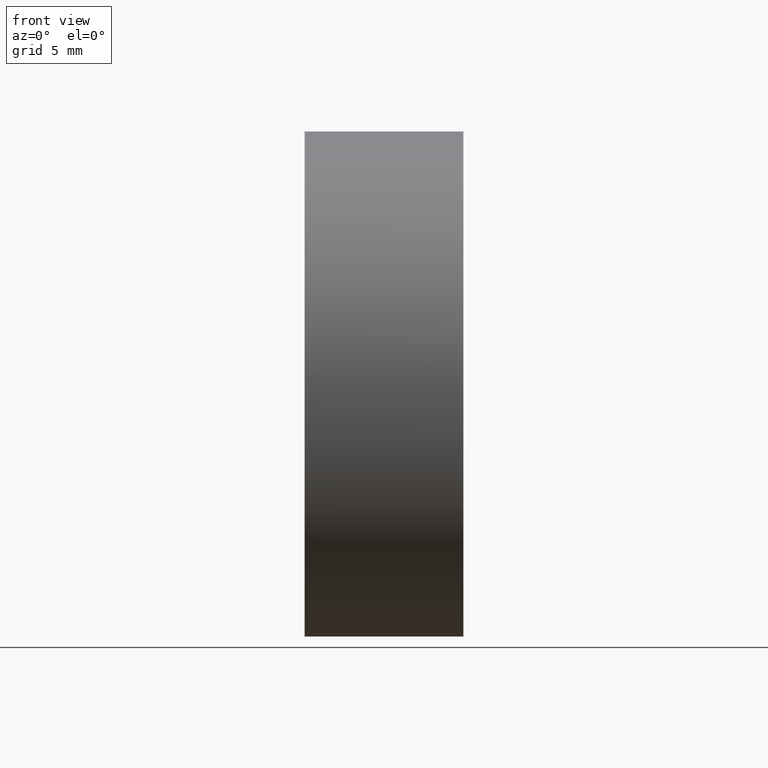
[diagram: clean part render]
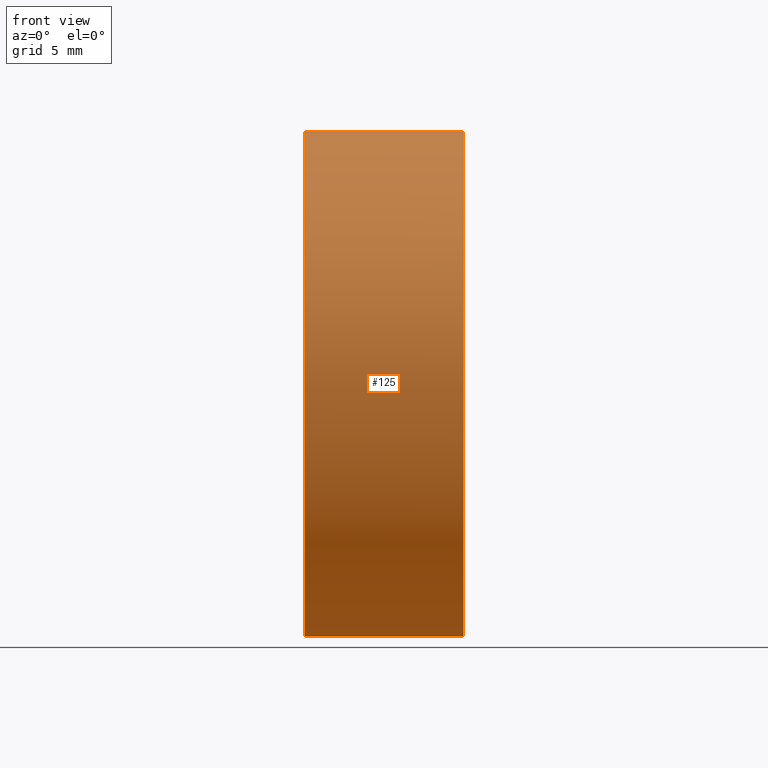
[diagram: same view with one face highlighted and labeled with its STEP entity id]
A machine part, front view. The second image highlights one B-rep face of the part: STEP entity #125.
In plain terms, the highlighted cylindrical surface (partial cylindrical patch) has radius 12.5 mm, axis along (-1, -0, -0).
Its self-contained STEP definition (entity closure, byte-faithful):
#1 = CARTESIAN_POINT ( 'NONE',  ( 57.53233705252611700, 32.61076812922678400, -12.49999999999999600 ) ) ;
#5 = CIRCLE ( 'NONE', #91, 12.49999999999999600 ) ;
#8 = AXIS2_PLACEMENT_3D ( 'NONE', #164, #10, #47 ) ;
#10 = DIRECTION ( 'NONE',  ( -1.000000000000000000, -0.0000000000000000000, -0.0000000000000000000 ) ) ;
#14 = VECTOR ( 'NONE', #140, 1000.000000000000000 ) ;
#19 = VERTEX_POINT ( 'NONE', #1 ) ;
#25 = CARTESIAN_POINT ( 'NONE',  ( 56.10091507999716500, 32.61076812922678400, 12.49999999999999600 ) ) ;
#31 = DIRECTION ( 'NONE',  ( -1.000000000000000000, -0.0000000000000000000, -0.0000000000000000000 ) ) ;
#34 = LINE ( 'NONE', #25, #14 ) ;
#38 = DIRECTION ( 'NONE',  ( 0.0000000000000000000, 0.0000000000000000000, 1.000000000000000000 ) ) ;
#42 = EDGE_CURVE ( 'NONE', #19, #90, #5, .T. ) ;
#43 = ORIENTED_EDGE ( 'NONE', *, *, #184, .T. ) ;
#47 = DIRECTION ( 'NONE',  ( 0.0000000000000000000, 0.0000000000000000000, 1.000000000000000000 ) ) ;
#51 = VERTEX_POINT ( 'NONE', #132 ) ;
#63 = DIRECTION ( 'NONE',  ( 0.0000000000000000000, 0.0000000000000000000, 1.000000000000000000 ) ) ;
#64 = EDGE_CURVE ( 'NONE', #51, #19, #156, .T. ) ;
#65 = AXIS2_PLACEMENT_3D ( 'NONE', #94, #78, #38 ) ;
#71 = CARTESIAN_POINT ( 'NONE',  ( 57.53233705252611700, 32.61076812922678400, 0.0000000000000000000 ) ) ;
#75 = ORIENTED_EDGE ( 'NONE', *, *, #64, .F. ) ;
#78 = DIRECTION ( 'NONE',  ( -1.000000000000000000, -0.0000000000000000000, -0.0000000000000000000 ) ) ;
#84 = VERTEX_POINT ( 'NONE', #134 ) ;
#87 = EDGE_CURVE ( 'NONE', #84, #181, #185, .T. ) ;
#90 = VERTEX_POINT ( 'NONE', #108 ) ;
#91 = AXIS2_PLACEMENT_3D ( 'NONE', #71, #102, #158 ) ;
#94 = CARTESIAN_POINT ( 'NONE',  ( 65.38778473377520600, 32.61076812922678400, 0.0000000000000000000 ) ) ;
#102 = DIRECTION ( 'NONE',  ( -1.000000000000000000, -0.0000000000000000000, -0.0000000000000000000 ) ) ;
#106 = ORIENTED_EDGE ( 'NONE', *, *, #42, .F. ) ;
#108 = CARTESIAN_POINT ( 'NONE',  ( 57.53233705252611700, 32.61076812922678400, 12.49999999999999600 ) ) ;
#111 = CARTESIAN_POINT ( 'NONE',  ( 65.38778473377520600, 32.61076812922678400, 12.49999999999999600 ) ) ;
#121 = CARTESIAN_POINT ( 'NONE',  ( 56.10091507999716500, 32.61076812922678400, -12.49999999999999600 ) ) ;
#125 = ADVANCED_FACE ( 'NONE', ( #144 ), #171, .T. ) ;
#128 = AXIS2_PLACEMENT_3D ( 'NONE', #178, #154, #63 ) ;
#129 = CIRCLE ( 'NONE', #8, 12.49999999999999600 ) ;
#131 = ORIENTED_EDGE ( 'NONE', *, *, #87, .T. ) ;
#132 = CARTESIAN_POINT ( 'NONE',  ( 65.38778473377520600, 32.61076812922678400, -12.49999999999999600 ) ) ;
#134 = CARTESIAN_POINT ( 'NONE',  ( 65.38778473377520600, 20.11076812922678800, 0.0000000000000000000 ) ) ;
#137 = EDGE_LOOP ( 'NONE', ( #75, #43, #131, #161, #106 ) ) ;
#140 = DIRECTION ( 'NONE',  ( -1.000000000000000000, -0.0000000000000000000, -0.0000000000000000000 ) ) ;
#144 = FACE_OUTER_BOUND ( 'NONE', #137, .T. ) ;
#153 = VECTOR ( 'NONE', #31, 1000.000000000000000 ) ;
#154 = DIRECTION ( 'NONE',  ( -1.000000000000000000, -0.0000000000000000000, -0.0000000000000000000 ) ) ;
#156 = LINE ( 'NONE', #121, #153 ) ;
#158 = DIRECTION ( 'NONE',  ( 0.0000000000000000000, 0.0000000000000000000, 1.000000000000000000 ) ) ;
#161 = ORIENTED_EDGE ( 'NONE', *, *, #173, .T. ) ;
#164 = CARTESIAN_POINT ( 'NONE',  ( 65.38778473377520600, 32.61076812922678400, 0.0000000000000000000 ) ) ;
#171 = CYLINDRICAL_SURFACE ( 'NONE', #128, 12.49999999999999600 ) ;
#173 = EDGE_CURVE ( 'NONE', #181, #90, #34, .T. ) ;
#178 = CARTESIAN_POINT ( 'NONE',  ( 56.10091507999716500, 32.61076812922678400, 0.0000000000000000000 ) ) ;
#181 = VERTEX_POINT ( 'NONE', #111 ) ;
#184 = EDGE_CURVE ( 'NONE', #51, #84, #129, .T. ) ;
#185 = CIRCLE ( 'NONE', #65, 12.49999999999999600 ) ;